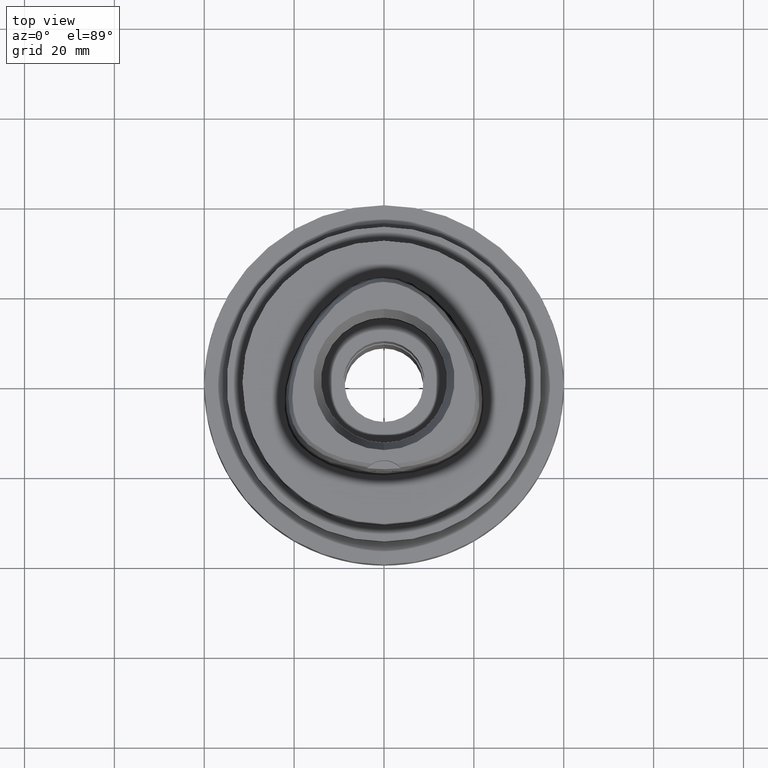
[diagram: clean part render]
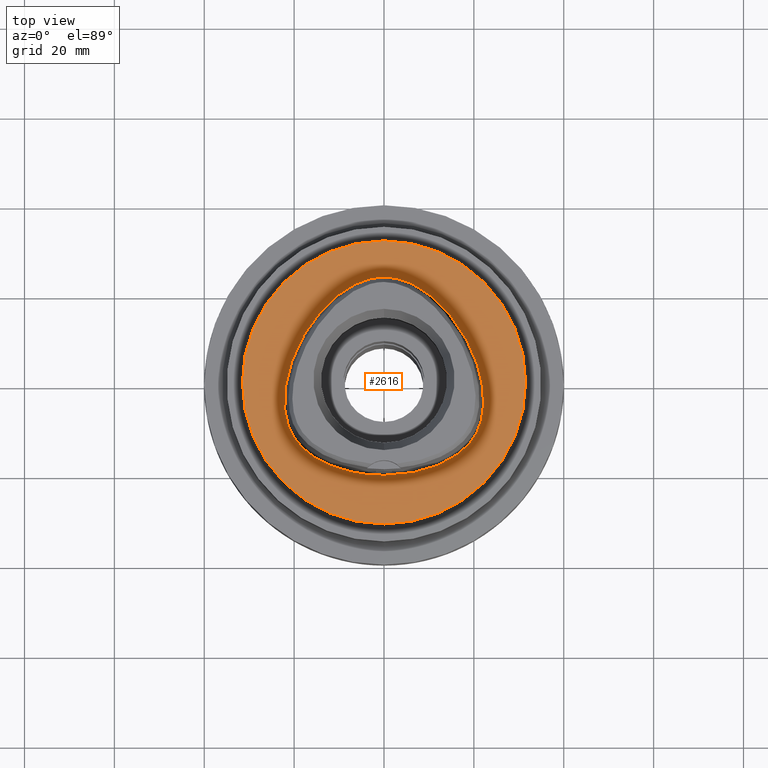
[diagram: same view with one face highlighted and labeled with its STEP entity id]
A machine part, top view. The second image highlights one B-rep face of the part: STEP entity #2616.
In plain terms, the highlighted planar face has unit normal (0, 0, -1).
Its self-contained STEP definition (entity closure, byte-faithful):
#288=CARTESIAN_POINT('',(0.E0,0.E0,1.065814103640E-14));
#289=DIRECTION('',(0.E0,0.E0,-1.E0));
#290=DIRECTION('',(0.E0,-1.E0,0.E0));
#291=AXIS2_PLACEMENT_3D('',#288,#289,#290);
#296=CARTESIAN_POINT('',(0.E0,0.E0,1.065814103640E-14));
#297=DIRECTION('',(0.E0,0.E0,-1.E0));
#298=DIRECTION('',(0.E0,1.E0,0.E0));
#299=AXIS2_PLACEMENT_3D('',#296,#297,#298);
#304=CARTESIAN_POINT('',(-1.044767048386E-11,-2.0675E1,1.298220790128E-13));
#305=CARTESIAN_POINT('',(9.154433946782E-1,-2.0675E1,1.298220790128E-13));
#306=CARTESIAN_POINT('',(2.713089039501E0,-2.060510360715E1,
-6.025063655040E-14));
#307=CARTESIAN_POINT('',(5.335706913198E0,-2.030239853069E1,
1.614410940714E-14));
#308=CARTESIAN_POINT('',(7.806899432974E0,-1.982005260729E1,0.E0));
#309=CARTESIAN_POINT('',(1.006898384866E1,-1.918883166295E1,0.E0));
#310=CARTESIAN_POINT('',(1.209085261324E1,-1.844262978068E1,0.E0));
#311=CARTESIAN_POINT('',(1.386760327238E1,-1.761236820313E1,0.E0));
#312=CARTESIAN_POINT('',(1.541562100154E1,-1.671870189711E1,0.E0));
#313=CARTESIAN_POINT('',(1.674646083400E1,-1.578317639876E1,0.E0));
#314=CARTESIAN_POINT('',(1.788934417484E1,-1.481089175457E1,0.E0));
#315=CARTESIAN_POINT('',(1.885354920439E1,-1.381829413634E1,0.E0));
#316=CARTESIAN_POINT('',(1.966727293877E1,-1.280006369048E1,0.E0));
#317=CARTESIAN_POINT('',(2.035197756804E1,-1.174242234800E1,0.E0));
#318=CARTESIAN_POINT('',(2.092147561966E1,-1.062581952319E1,0.E0));
#319=CARTESIAN_POINT('',(2.139452558831E1,-9.415777138328E0,0.E0));
#320=CARTESIAN_POINT('',(2.177056195700E1,-8.089759144601E0,0.E0));
#321=CARTESIAN_POINT('',(2.204154038321E1,-6.614243404042E0,0.E0));
#322=CARTESIAN_POINT('',(2.218664790733E1,-4.991334777442E0,0.E0));
#323=CARTESIAN_POINT('',(2.218663012651E1,-3.203402816726E0,0.E0));
#324=CARTESIAN_POINT('',(2.201668877094E1,-1.244764924228E0,0.E0));
#325=CARTESIAN_POINT('',(2.165101178059E1,8.815492648405E-1,0.E0));
#326=CARTESIAN_POINT('',(2.106550635833E1,3.157871726982E0,0.E0));
#327=CARTESIAN_POINT('',(2.024618570228E1,5.541054969551E0,0.E0));
#328=CARTESIAN_POINT('',(1.919145948795E1,7.974530773262E0,0.E0));
#329=CARTESIAN_POINT('',(1.792083467047E1,1.037972694167E1,0.E0));
#330=CARTESIAN_POINT('',(1.647105661592E1,1.267795303654E1,0.E0));
#331=CARTESIAN_POINT('',(1.488904071961E1,1.480378575076E1,0.E0));
#332=CARTESIAN_POINT('',(1.323563415202E1,1.669805451438E1,0.E0));
#333=CARTESIAN_POINT('',(1.155775358965E1,1.833761814566E1,0.E0));
#334=CARTESIAN_POINT('',(9.901844462620E0,1.971101963694E1,0.E0));
#335=CARTESIAN_POINT('',(8.293199907341E0,2.083225850133E1,0.E0));
#336=CARTESIAN_POINT('',(6.747696091252E0,2.172175360438E1,0.E0));
#337=CARTESIAN_POINT('',(5.272185182734E0,2.240385227576E1,0.E0));
#338=CARTESIAN_POINT('',(3.863569718886E0,2.290362348026E1,0.E0));
#339=CARTESIAN_POINT('',(2.518601747053E0,2.324125776182E1,1.578514688326E-14));
#340=CARTESIAN_POINT('',(1.232678241092E0,2.343403831215E1,
-5.891097017328E-14));
#341=CARTESIAN_POINT('',(4.053766397922E-1,2.347499999999E1,
1.269354991488E-13));
#342=CARTESIAN_POINT('',(5.434974773772E-11,2.347499999999E1,
1.269354991488E-13));
#347=CARTESIAN_POINT('',(5.434974773772E-11,2.347499999999E1,
1.269354991488E-13));
#348=CARTESIAN_POINT('',(-4.030634297871E-1,2.347499999999E1,
1.269354991488E-13));
#349=CARTESIAN_POINT('',(-1.225986106053E0,2.343450860890E1,
-5.891097017328E-14));
#350=CARTESIAN_POINT('',(-2.506268516359E0,2.324355091430E1,
1.578514688326E-14));
#351=CARTESIAN_POINT('',(-3.845971139937E0,2.290878553922E1,0.E0));
#352=CARTESIAN_POINT('',(-5.250993009394E0,2.241244755379E1,0.E0));
#353=CARTESIAN_POINT('',(-6.726834168988E0,2.173261461914E1,0.E0));
#354=CARTESIAN_POINT('',(-8.274027764505E0,2.084453043953E1,0.E0));
#355=CARTESIAN_POINT('',(-9.886341445907E0,1.972305766261E1,0.E0));
#356=CARTESIAN_POINT('',(-1.154793589712E1,1.834667875925E1,0.E0));
#357=CARTESIAN_POINT('',(-1.322998484798E1,1.670435050628E1,0.E0));
#358=CARTESIAN_POINT('',(-1.489055932427E1,1.480230947737E1,0.E0));
#359=CARTESIAN_POINT('',(-1.647661871085E1,1.267012323206E1,0.E0));
#360=CARTESIAN_POINT('',(-1.792863493517E1,1.036644335015E1,0.E0));
#361=CARTESIAN_POINT('',(-1.919962225157E1,7.957785446681E0,0.E0));
#362=CARTESIAN_POINT('',(-2.025535367914E1,5.517997896251E0,0.E0));
#363=CARTESIAN_POINT('',(-2.107456042391E1,3.128177839914E0,0.E0));
#364=CARTESIAN_POINT('',(-2.165800113396E1,8.493618498331E-1,0.E0));
#365=CARTESIAN_POINT('',(-2.202124685475E1,-1.279310734543E0,0.E0));
#366=CARTESIAN_POINT('',(-2.218813277665E1,-3.237974713547E0,0.E0));
#367=CARTESIAN_POINT('',(-2.218522608328E1,-5.023697754416E0,0.E0));
#368=CARTESIAN_POINT('',(-2.203732802638E1,-6.643564643687E0,0.E0));
#369=CARTESIAN_POINT('',(-2.176597532281E1,-8.109372991446E0,0.E0));
#370=CARTESIAN_POINT('',(-2.138642660226E1,-9.440206720734E0,0.E0));
#371=CARTESIAN_POINT('',(-2.091333039360E1,-1.064293286298E1,0.E0));
#372=CARTESIAN_POINT('',(-2.035041602014E1,-1.174361080134E1,0.E0));
#373=CARTESIAN_POINT('',(-1.967889339132E1,-1.278300077067E1,0.E0));
#374=CARTESIAN_POINT('',(-1.887250590568E1,-1.379673346933E1,0.E0));
#375=CARTESIAN_POINT('',(-1.791199893324E1,-1.478942462719E1,0.E0));
#376=CARTESIAN_POINT('',(-1.677873021966E1,-1.575802049767E1,0.E0));
#377=CARTESIAN_POINT('',(-1.545124194726E1,-1.669598356430E1,0.E0));
#378=CARTESIAN_POINT('',(-1.390733764563E1,-1.759175457475E1,0.E0));
#379=CARTESIAN_POINT('',(-1.212838282871E1,-1.842717922590E1,0.E0));
#380=CARTESIAN_POINT('',(-1.010430023518E1,-1.917757135316E1,0.E0));
#381=CARTESIAN_POINT('',(-7.838936520760E0,-1.981259612261E1,0.E0));
#382=CARTESIAN_POINT('',(-5.361352029779E0,-2.029888800029E1,
1.614410940714E-14));
#383=CARTESIAN_POINT('',(-2.716537152608E0,-2.060526757321E1,
-6.025063655040E-14));
#384=CARTESIAN_POINT('',(-9.158691993154E-1,-2.0675E1,1.298220790128E-13));
#385=CARTESIAN_POINT('',(-1.044767048386E-11,-2.0675E1,1.298220790128E-13));
#1732=VERTEX_POINT('',#347);
#1733=VERTEX_POINT('',#385);
#1738=CARTESIAN_POINT('',(0.E0,-3.15E1,1.065814103640E-14));
#1739=CARTESIAN_POINT('',(0.E0,3.15E1,1.065814103640E-14));
#1740=VERTEX_POINT('',#1738);
#1741=VERTEX_POINT('',#1739);
#2600=CARTESIAN_POINT('',(0.E0,0.E0,0.E0));
#2601=DIRECTION('',(0.E0,0.E0,-1.E0));
#2602=DIRECTION('',(0.E0,-1.E0,0.E0));
#2603=AXIS2_PLACEMENT_3D('',#2600,#2601,#2602);
#2604=PLANE('',#2603);
#2606=ORIENTED_EDGE('',*,*,#2605,.T.);
#2608=ORIENTED_EDGE('',*,*,#2607,.T.);
#2609=EDGE_LOOP('',(#2606,#2608));
#2610=FACE_OUTER_BOUND('',#2609,.F.);
#2612=ORIENTED_EDGE('',*,*,#2611,.T.);
#2613=ORIENTED_EDGE('',*,*,#2583,.T.);
#2614=EDGE_LOOP('',(#2612,#2613));
#2615=FACE_BOUND('',#2614,.F.);
#292=CIRCLE('',#291,3.15E1);
#300=CIRCLE('',#299,3.15E1);
#343=B_SPLINE_CURVE_WITH_KNOTS('',3,(#304,#305,#306,#307,#308,#309,#310,#311,
#312,#313,#314,#315,#316,#317,#318,#319,#320,#321,#322,#323,#324,#325,#326,#327,
#328,#329,#330,#331,#332,#333,#334,#335,#336,#337,#338,#339,#340,#341,#342),
.UNSPECIFIED.,.F.,.F.,(4,1,1,1,1,1,1,1,1,1,1,1,1,1,1,1,1,1,1,1,1,1,1,1,1,1,1,1,
1,1,1,1,1,1,1,1,4),(0.E0,2.777777777778E-2,5.555555555556E-2,8.333333333333E-2,
1.111111111111E-1,1.388888888889E-1,1.666666666667E-1,1.944444444444E-1,
2.222222222222E-1,2.5E-1,2.777777777778E-1,3.055555555556E-1,3.333333333333E-1,
3.611111111111E-1,3.888888888889E-1,4.166666666667E-1,4.444444444444E-1,
4.722222222222E-1,5.E-1,5.277777777778E-1,5.555555555556E-1,5.833333333333E-1,
6.111111111111E-1,6.388888888889E-1,6.666666666667E-1,6.944444444444E-1,
7.222222222222E-1,7.5E-1,7.777777777778E-1,8.055555555556E-1,8.333333333333E-1,
8.611111111111E-1,8.888888888889E-1,9.166666666667E-1,9.444444444444E-1,
9.722222222222E-1,1.E0),.UNSPECIFIED.);
#386=B_SPLINE_CURVE_WITH_KNOTS('',3,(#347,#348,#349,#350,#351,#352,#353,#354,
#355,#356,#357,#358,#359,#360,#361,#362,#363,#364,#365,#366,#367,#368,#369,#370,
#371,#372,#373,#374,#375,#376,#377,#378,#379,#380,#381,#382,#383,#384,#385),
.UNSPECIFIED.,.F.,.F.,(4,1,1,1,1,1,1,1,1,1,1,1,1,1,1,1,1,1,1,1,1,1,1,1,1,1,1,1,
1,1,1,1,1,1,1,1,4),(0.E0,2.777777777778E-2,5.555555555556E-2,8.333333333333E-2,
1.111111111111E-1,1.388888888889E-1,1.666666666667E-1,1.944444444444E-1,
2.222222222222E-1,2.5E-1,2.777777777778E-1,3.055555555556E-1,3.333333333333E-1,
3.611111111111E-1,3.888888888889E-1,4.166666666667E-1,4.444444444444E-1,
4.722222222222E-1,5.E-1,5.277777777778E-1,5.555555555556E-1,5.833333333333E-1,
6.111111111111E-1,6.388888888889E-1,6.666666666667E-1,6.944444444444E-1,
7.222222222222E-1,7.5E-1,7.777777777778E-1,8.055555555556E-1,8.333333333333E-1,
8.611111111111E-1,8.888888888889E-1,9.166666666667E-1,9.444444444444E-1,
9.722222222222E-1,1.E0),.UNSPECIFIED.);
#2583=EDGE_CURVE('',#1732,#1733,#386,.T.);
#2605=EDGE_CURVE('',#1740,#1741,#292,.T.);
#2607=EDGE_CURVE('',#1741,#1740,#300,.T.);
#2611=EDGE_CURVE('',#1733,#1732,#343,.T.);
#2616=ADVANCED_FACE('',(#2610,#2615),#2604,.F.);